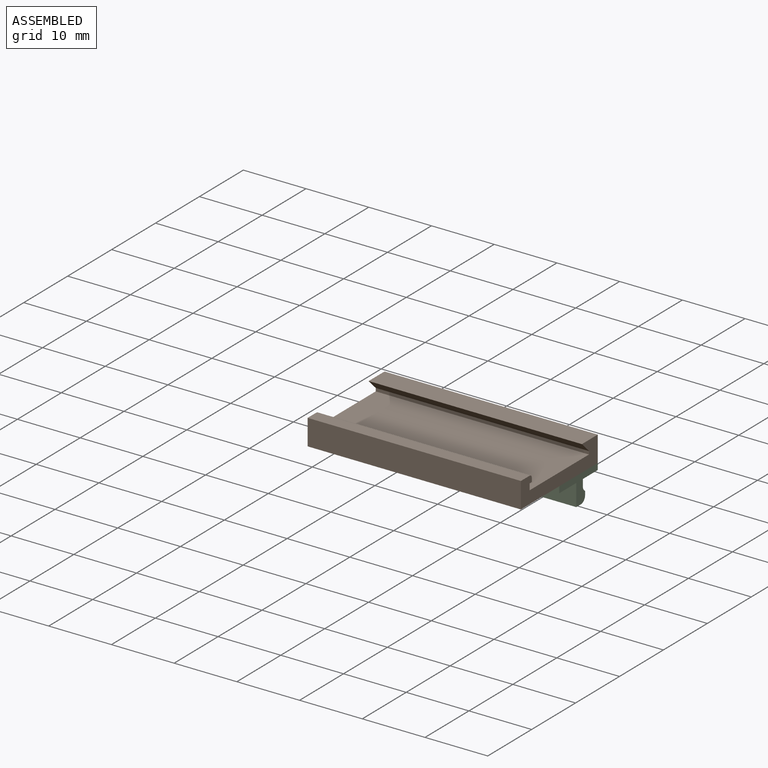
[diagram: assembled view]
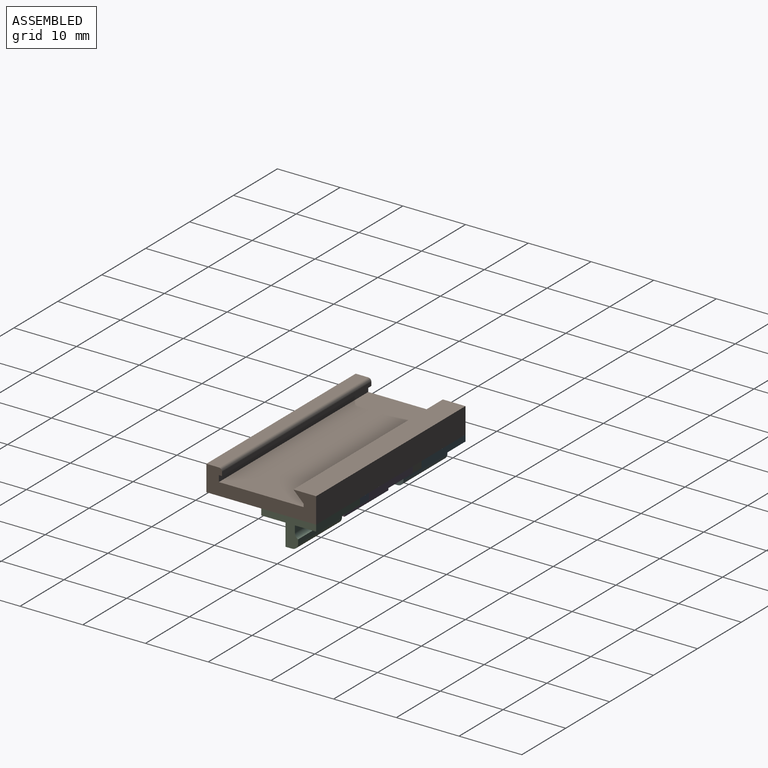
[diagram: assembled view, second angle]
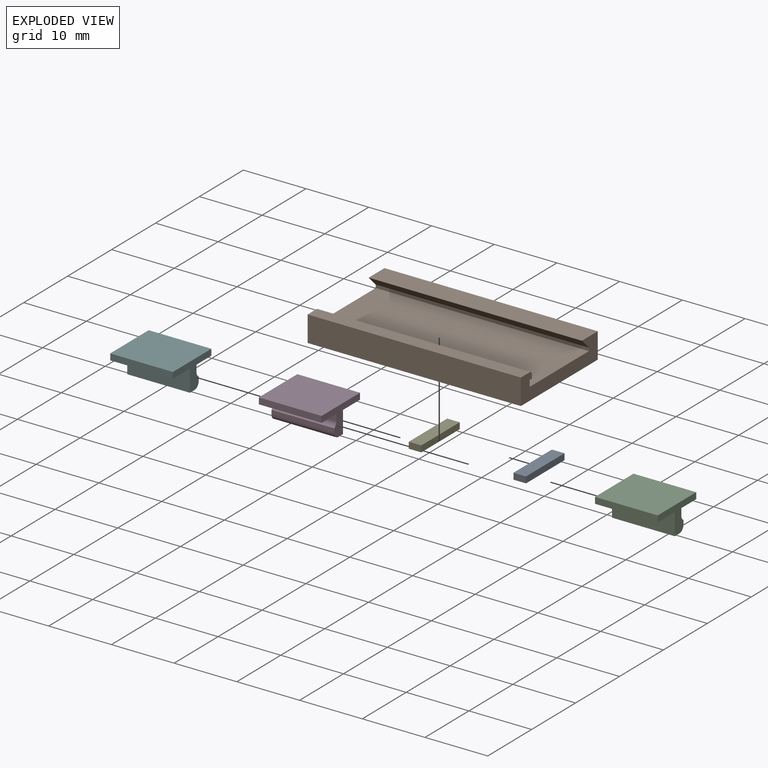
[diagram: exploded view]
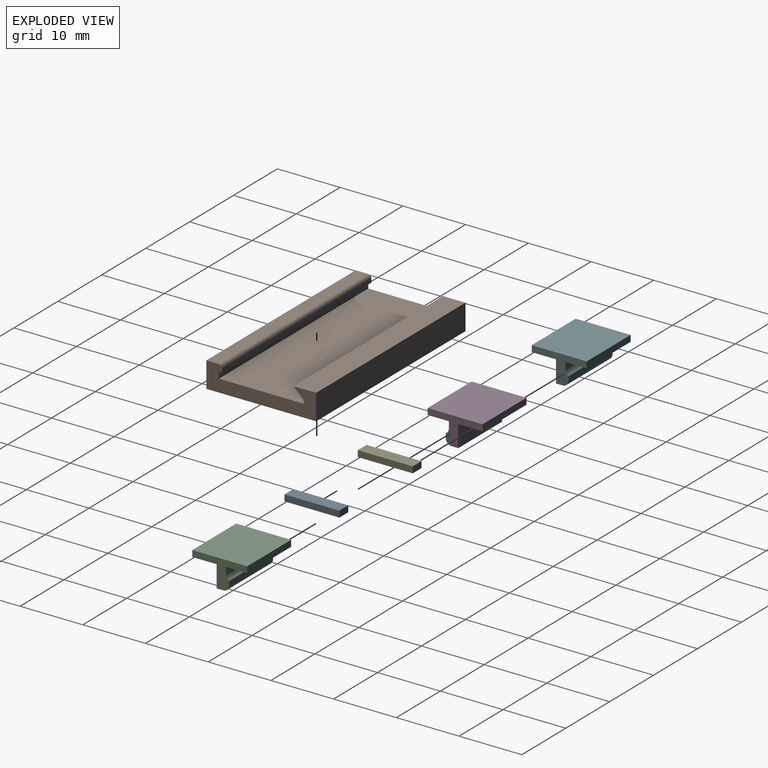
[diagram: exploded view, second angle]
ASSEMBLY  parts=6 mates=5
PART A: 6 faces, bbox 2x8.8x1 mm
  f0: plane 2x1mm, normal (0,-1,0), area 2mm2, adj f1,f3,f4,f5
  f1: plane 8.76x2mm, normal (0,0,-1), area 17.5mm2, adj f0,f2,f4,f5
  f2: plane 2x1mm, normal (0,1,0), area 2mm2, adj f1,f3,f4,f5
  f3: plane 8.76x2mm, normal (0,0,1), area 17.5mm2, adj f0,f2,f4,f5
  f4: plane 8.76x1mm, normal (1,0,0), area 8.8mm2, adj f0,f1,f2,f3
  f5: plane 8.76x1mm, normal (-1,0,0), area 8.8mm2, adj f0,f1,f2,f3
PART B: 14 faces, bbox 34x17.5x4.1 mm
  f0: plane 34x0.61mm, normal (0,1,0), area 20.6mm2, adj f1,f11,f12,f13
  f1: cylinder r=0.5mm len=34mm, axis (-1,0,0), area 26.7mm2, adj f0,f2,f12,f13
  f2: plane 34x2mm, normal (0,0,1), area 68mm2, adj f1,f3,f12,f13
  f3: plane 34x4.11mm, normal (0,-1,0), area 139.6mm2, adj f2,f4,f12,f13
  f4: plane 34x17.5mm, normal (0,0,-1), area 595mm2, adj f3,f5,f12,f13
  f5: plane 34x4.11mm, normal (0,1,0), area 139.6mm2, adj f4,f6,f12,f13
  f6: plane 34x3.61mm, normal (0,0,1), area 122.6mm2, adj f5,f7,f12,f13
  f7: plane 34x1.61mm, normal (0,-0.71,-0.71), area 77.2mm2, adj f6,f8,f12,f13
  f8: plane 34x0.5mm, normal (0,-1,0), area 17mm2, adj f7,f9,f12,f13
  f9: plane 34x13.5mm, normal (0,0,1), area 459mm2, adj f8,f10,f12,f13
  f10: plane 34x1mm, normal (0,1,0), area 34mm2, adj f9,f11,f12,f13
  f11: plane 34x0.5mm, normal (0,0,-1), area 17mm2, adj f0,f10,f12,f13
  f12: plane 17.5x4.11mm, normal (1,0,0), area 45.2mm2, adj f0,f1,f2,f3,f4,f5,f6,f7
  f13: plane 17.5x4.11mm, normal (-1,0,0), area 45.2mm2, adj f0,f1,f2,f3,f4,f5,f6,f7
PART C: 13 faces, bbox 10x8.8x4.5 mm
  f0: plane 10x1.08mm, normal (0,1,0), area 10.8mm2, adj f1,f10,f11,f12
  f1: plane 10x3.38mm, normal (0,0,-1), area 33.8mm2, adj f0,f2,f11,f12
  f2: plane 10x1mm, normal (0,1,0), area 10mm2, adj f1,f3,f11,f12
  f3: plane 10x8.76mm, normal (0,0,1), area 87.6mm2, adj f2,f4,f11,f12
  f4: plane 10x1mm, normal (0,-1,0), area 10mm2, adj f3,f5,f11,f12
  f5: plane 10x3.88mm, normal (0,0,-1), area 38.8mm2, adj f4,f6,f11,f12
  f6: plane 10x3.48mm, normal (0,-1,0), area 34.8mm2, adj f5,f7,f11,f12
  f7: plane 10x1.05mm, normal (0,0,-1), area 10.5mm2, adj f6,f8,f11,f12
  f8: cylinder r=0.95mm len=10mm, axis (-1,0,0), area 14.9mm2, adj f7,f9,f11,f12
  f9: plane 10x0.64mm, normal (0,1,0), area 6.4mm2, adj f8,f10,f11,f12
  f10: cylinder r=0.9mm len=10mm, axis (-1,0,0), area 10mm2, adj f0,f9,f11,f12
  f11: plane 8.76x4.48mm, normal (1,0,0), area 14.7mm2, adj f0,f1,f2,f3,f4,f5,f6,f7
  f12: plane 8.76x4.48mm, normal (-1,0,0), area 14.7mm2, adj f0,f1,f2,f3,f4,f5,f6,f7
PART D: same geometry as C
PART E: same geometry as A
PART F: same geometry as C
PLACE A t=(24.09,9.09,-7.51)mm
PLACE B t=(2.09,4.72,-0.53)mm
PLACE C t=(26.09,9.09,-7.51)mm
PLACE D rot(axis=(0,0,1),180deg) t=(24.09,9.09,-7.51)mm
PLACE E t=(12.09,9.09,-7.51)mm
PLACE F t=(2.09,9.09,-7.51)mm
MATE fastened E.f4 <-> D.f11  axis (1,0,0) through (14.09,4.71,-2.53)mm
MATE fastened F.f11 <-> E.f5  axis (1,0,0) through (12.09,4.71,-2.53)mm
MATE fastened A.f4 <-> C.f12  axis (1,0,0) through (26.09,4.71,-2.53)mm
MATE fastened B.f4 <-> F.f3  axis (0,0,-1) through (2.09,13.47,-2.53)mm
MATE fastened D.f12 <-> A.f5  axis (1,0,0) through (24.09,4.71,-2.53)mm
